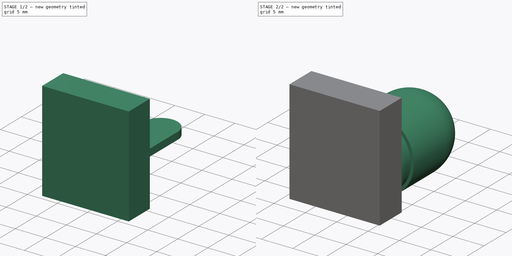
[diagram: build sequence overview — one tinted view per stage of 2, left to right]
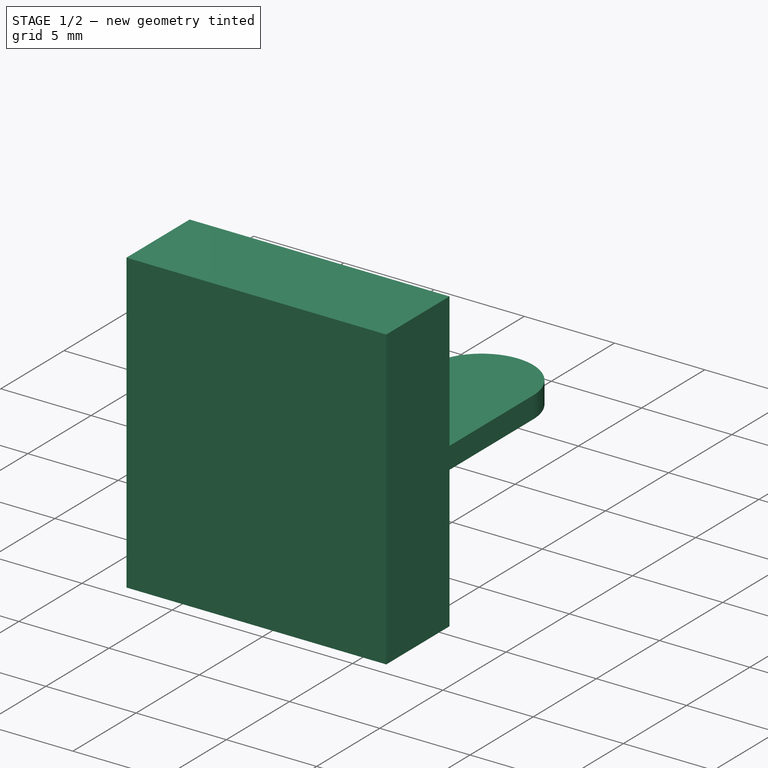
[diagram: stage 1 of 2 — iso view after this stage's code; geometry added in this stage tinted green]
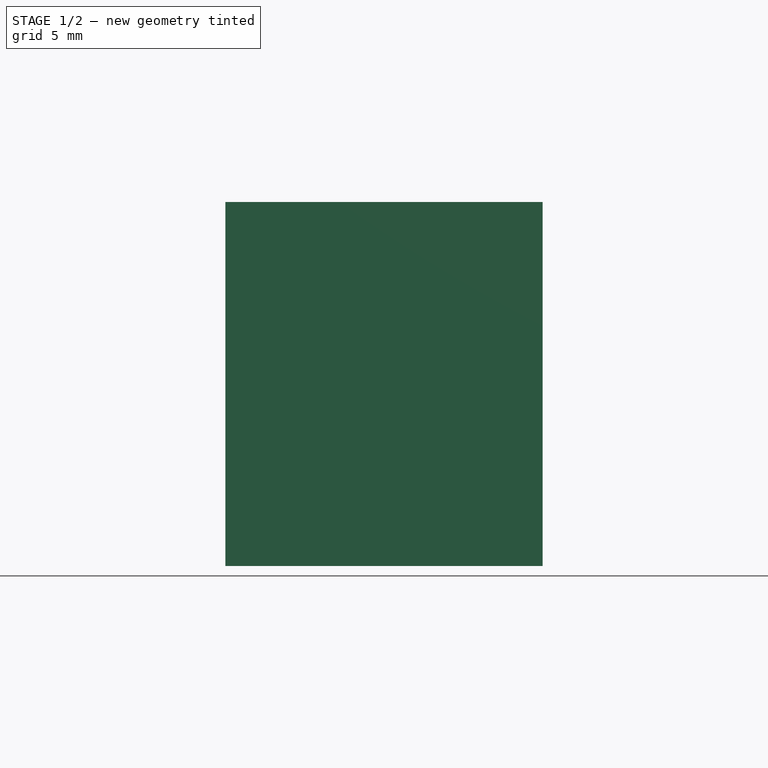
[diagram: stage 1 of 2 — front view after this stage's code; geometry added in this stage tinted green]
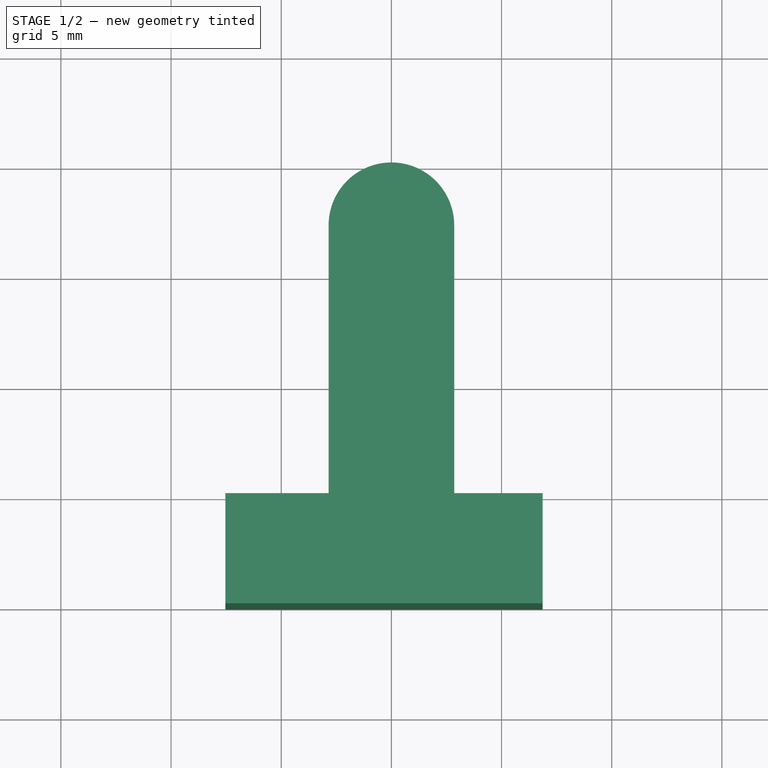
[diagram: stage 1 of 2 — top view after this stage's code; geometry added in this stage tinted green]
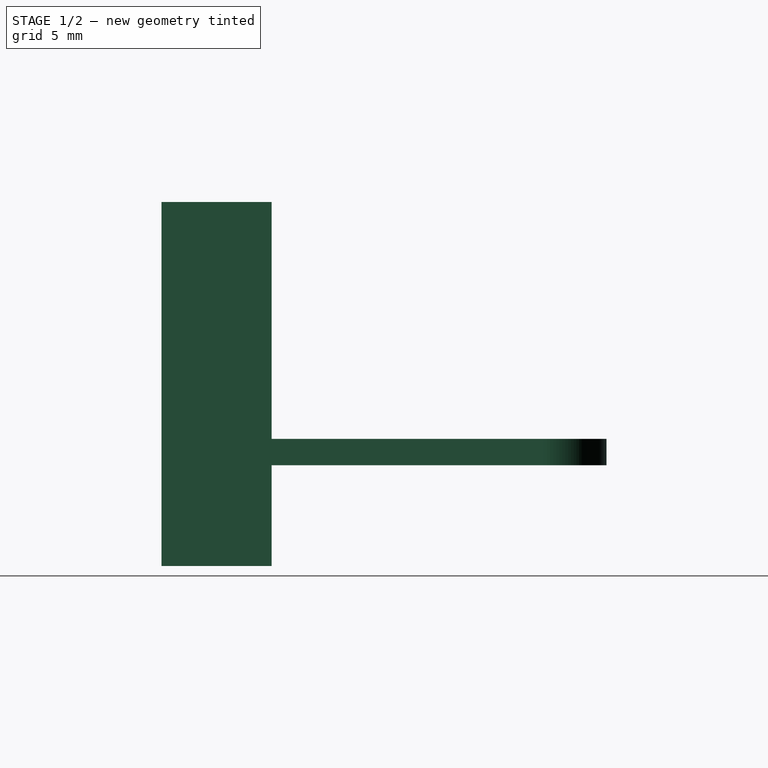
[diagram: stage 1 of 2 — right view after this stage's code; geometry added in this stage tinted green]
FCSTD DOCUMENT  (FreeCAD 0.19R24276 (Git))
Label: thermal_sleeve
License: All rights reserved
LicenseURL: http://en.wikipedia.org/wiki/All_rights_reserved
objects: App::Part×14, Part::Feature×13, Sketcher::SketchObject×5, PartDesign::Body×3, PartDesign::Pad×3, PartDesign::Revolution×1
note: 29 computed .brp shape members not serialized (recipe doc carries the construction recipe); baked Part::Feature solids carry a one-line shape summary decoded from their .brp

FEATURE [Sketcher::SketchObject] Sketch001
  FullyConstrained = true
  MapMode = 5
  Support = -> [XY_Plane001]
FEATURE [PartDesign::Body] Body  label="temperature_sleeve"
  Group = -> [Sketch,Revolution,Sketch001]
  Origin = -> Origin001
  Tip = -> Revolution
FEATURE [Sketcher::SketchObject] Sketch002
  FullyConstrained = true
  MapMode = 5
  Support = -> [XY_Plane028]
  sketch-geometry (4):
    g0: LineSegment StartX=-2.85 StartY=0 StartZ=0 EndX=-2.85 EndY=12.35 EndZ=0
    g1: LineSegment StartX=2.85 StartY=12.35 StartZ=0 EndX=2.85 EndY=0 EndZ=0
    g2: LineSegment StartX=2.85 StartY=0 StartZ=0 EndX=-2.85 EndY=0 EndZ=0
    g3: ArcOfCircle CenterX=0 CenterY=12.35 CenterZ=0 NormalX=0 NormalY=0 NormalZ=1 AngleXU=0 Radius=2.85 StartAngle=0 EndAngle=3.14159
  constraints (13):
    c: PointOnObject(g0,g-1)
    c: Vertical(g0)
    c: PointOnObject(g1,g-1)
    c: Vertical(g1)
    c: Coincident(g1,g2)
    c: Coincident(g2,g0)
    c: PointOnObject(g3,g-2)
    c: Coincident(g3,g0)
    c: Coincident(g3,g1)
    c: Horizontal(g1,g0)
    c: Horizontal(g3,g0)
    c: DistanceX(g0,g-1) = 2.85
    c: Distance(g0) = 12.35
FEATURE [PartDesign::Pad] Pad
  Direction = (1,1,1)
  Length = 0.6
  Length2 = 0.6
  Profile = -> Sketch002
  Type = 4
FEATURE [PartDesign::Body] Body001  label="PCB_cutout"
  Group = -> [Sketch002,Pad,Sketch003,Pad001]
  Origin = -> Origin028
  Tip = -> Pad001
FEATURE [Sketcher::SketchObject] Sketch004
  FullyConstrained = false
  MapMode = 5
  Placement = pos=(0,0,0) rot=(1,0,0;1.5708rad)
  Support = -> [XZ_Plane029]
  sketch-geometry (4):
    g0: LineSegment StartX=-7.53453 StartY=11.3477 StartZ=0 EndX=6.86273 EndY=11.3477 EndZ=0
    g1: LineSegment StartX=6.86273 StartY=11.3477 StartZ=0 EndX=6.86273 EndY=-5.1722 EndZ=0
    g2: LineSegment StartX=6.86273 StartY=-5.1722 StartZ=0 EndX=-7.53453 EndY=-5.1722 EndZ=0
    g3: LineSegment StartX=-7.53453 StartY=-5.1722 StartZ=0 EndX=-7.53453 EndY=11.3477 EndZ=0
  constraints (8):
    c: Coincident(g0,g1)
    c: Coincident(g1,g2)
    c: Coincident(g2,g3)
    c: Coincident(g3,g0)
    c: Horizontal(g0)
    c: Horizontal(g2)
    c: Vertical(g1)
    c: Vertical(g3)
FEATURE [PartDesign::Pad] Pad002
  Direction = (1,1,1)
  Length = 5
  Length2 = 100
  Placement = pos=(0,0,0) rot=(1,0,0;1.5708rad)
  Profile = -> Sketch004
  Type = 0
FEATURE [PartDesign::Body] Body002  label="surface_edge"
  Group = -> [Sketch004,Pad002]
  Origin = -> Origin029
  Placement = pos=(0,17.0263,7.49038) rot=(1,0,0;1.0472rad)
  Tip = -> Pad002
FEATURE [App::Part] Part
  Group = -> [Body,Body001,Body002]
  Origin = -> Origin
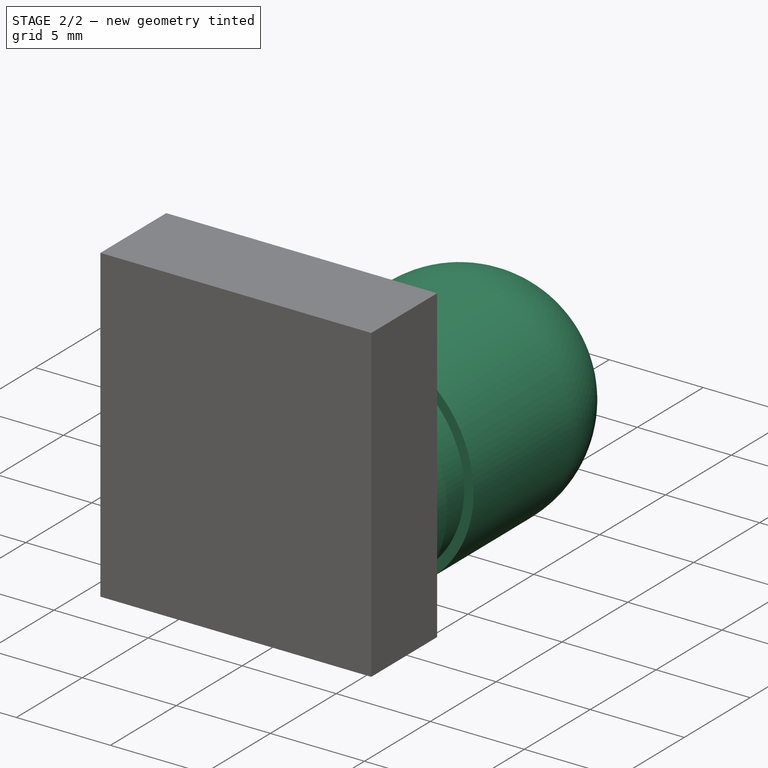
[diagram: stage 2 of 2 — iso view after this stage's code; geometry added in this stage tinted green]
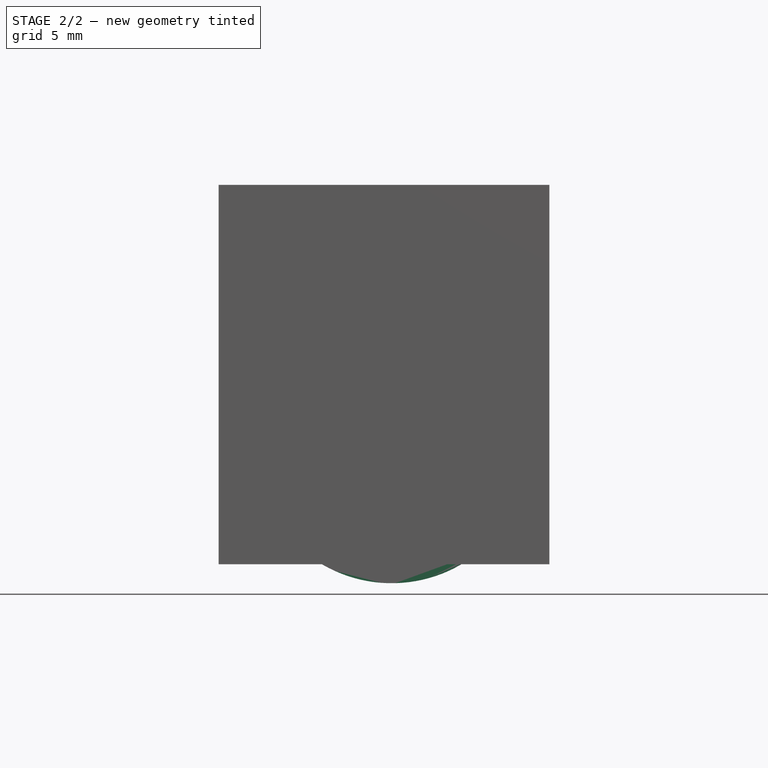
[diagram: stage 2 of 2 — front view after this stage's code; geometry added in this stage tinted green]
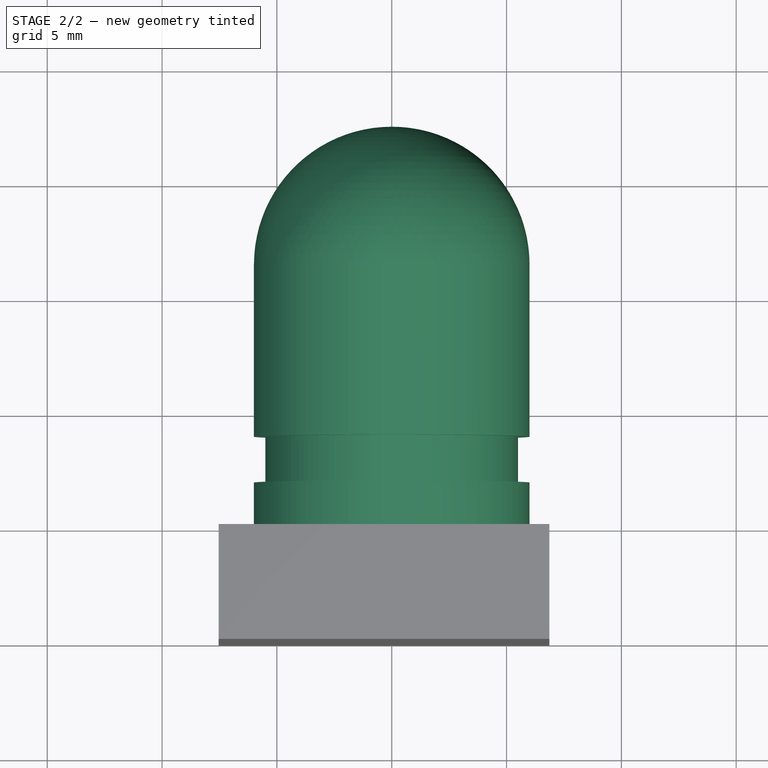
[diagram: stage 2 of 2 — top view after this stage's code; geometry added in this stage tinted green]
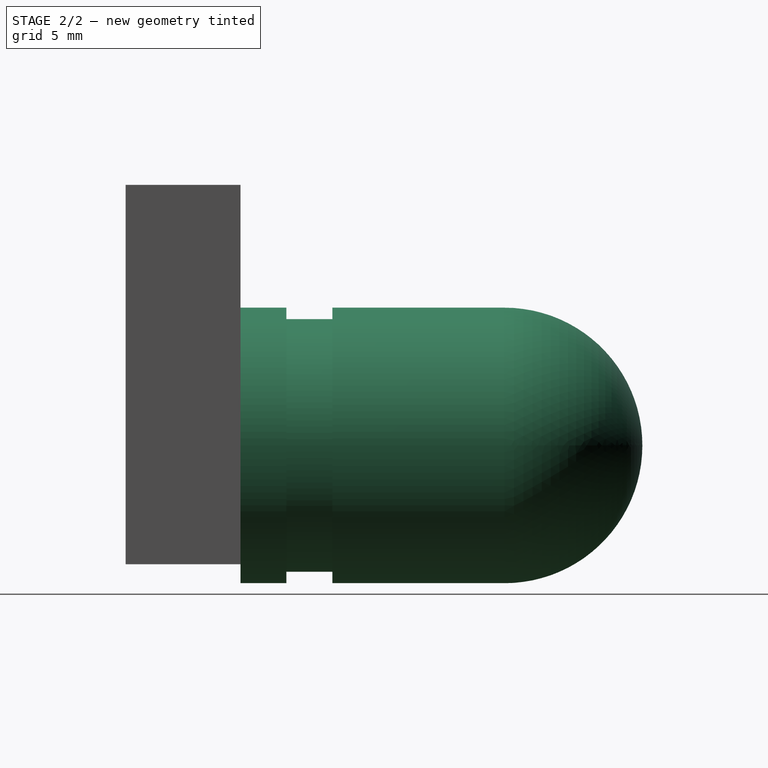
[diagram: stage 2 of 2 — right view after this stage's code; geometry added in this stage tinted green]
FEATURE [Sketcher::SketchObject] Sketch
  FullyConstrained = true
  MapMode = 5
  Support = -> [XY_Plane001]
  sketch-geometry (8):
    g0: ArcOfCircle CenterX=0 CenterY=11.5 CenterZ=0 NormalX=0 NormalY=0 NormalZ=1 AngleXU=0 Radius=6 StartAngle=5.09559e-06 EndAngle=1.5708
    g1: LineSegment StartX=4e-16 StartY=17.5 StartZ=0 EndX=0 EndY=0 EndZ=0
    g2: LineSegment StartX=6 StartY=0 StartZ=0 EndX=0 EndY=0 EndZ=0
    g3: LineSegment StartX=6 StartY=0 StartZ=0 EndX=6 EndY=2 EndZ=0
    g4: LineSegment StartX=6 StartY=2 StartZ=0 EndX=5.5 EndY=2 EndZ=0
    g5: LineSegment StartX=5.5 StartY=2 StartZ=0 EndX=5.5 EndY=4 EndZ=0
    g6: LineSegment StartX=5.5 StartY=4 StartZ=0 EndX=6 EndY=4 EndZ=0
    g7: LineSegment StartX=6 StartY=4 StartZ=0 EndX=6 EndY=11.5 EndZ=0
  constraints (24):
    c: PointOnObject(g0,g-2)
    c: Coincident(g1,g0)
    c: Coincident(g1,g-1)
    c: Coincident(g2,g1)
    c: Horizontal(g2)
    c: Vertical(g0,g1)
    c: Radius(g0) = 6
    c: Coincident(g2,g3)
    c: Vertical(g3)
    c: Coincident(g3,g4)
    c: Horizontal(g4)
    c: Coincident(g4,g5)
    c: Vertical(g5)
    c: Coincident(g5,g6)
    c: Coincident(g6,g7)
    c: Coincident(g7,g0)
    c: Vertical(g7)
    c: Horizontal(g6)
    c: Distance(g5) = 2
    c: Distance(g3) = 2
    c: Distance(g6) = 0.5
    c: Equal(g4,g6)
    c: Distance(g7) = 7.5
    c: Distance(g2) = 6
FEATURE [Part::Feature] Part__Feature013  label="C_0603_1608Metric006"
  shape: bbox 1.6 x 0.8 x 0.8 mm, 28 faces (baked)
FEATURE [App::Part] C_0603_1608Metric003  label="C_0603_1608Metric007"
  Group = -> [Part__Feature013]
  Origin = -> Origin015
  Placement = pos=(-3.1,-29.45,0.836) rot=(0,0,1;3.14159rad)
FEATURE [Part::Feature] Part__Feature014  label="C_0603_1608Metric008"
  shape: bbox 1.6 x 0.8 x 0.8 mm, 28 faces (baked)
FEATURE [App::Part] C_0603_1608Metric004  label="C_0603_1608Metric009"
  Group = -> [Part__Feature014]
  Origin = -> Origin016
  Placement = pos=(-3.5,-31.45,0.836) rot=(0,0,1;3.14159rad)
FEATURE [Part::Feature] Part__Feature015  label="WSON_6_1EP_2x2mm_P065mm_EP1x16mm001"
  shape: bbox 2 x 1.98 x 0.82 mm, 50 faces (baked)
FEATURE [App::Part] WSON_6_1EP_2x2mm_P0_65mm_EP1x1_6mm001  label="WSON-6-1EP_2x2mm_P0.65mm_EP1x1.6mm001"
  Group = -> [Part__Feature015]
  Origin = -> Origin017
  Placement = pos=(-2e-06,36.05,0.836) rot=(0,0,-1;1.5708rad)
FEATURE [Part::Feature] Part__Feature016  label="LED_0603_1608Metric002"
  shape: bbox 1.6 x 0.8 x 1.1 mm, 50 faces (baked)
FEATURE [App::Part] LED_0603_1608Metric001  label="LED_0603_1608Metric003"
  Group = -> [Part__Feature016]
  Origin = -> Origin018
  Placement = pos=(3.4,-33.25,0.836) rot=(0,0,1;0rad)
FEATURE [Part::Feature] Part__Feature017  label="R_0603_1608Metric008"
  shape: bbox 1.6 x 0.8 x 0.45 mm, 26 faces (baked)
FEATURE [App::Part] R_0603_1608Metric004  label="R_0603_1608Metric009"
  Group = -> [Part__Feature017]
  Origin = -> Origin019
  Placement = pos=(3.1,-27.85,0.836) rot=(0,0,1;3.14159rad)
FEATURE [Part::Feature] Part__Feature018  label="C_0402_1005Metric006"
  shape: bbox 1 x 0.5 x 0.5 mm, 28 faces (baked)
FEATURE [App::Part] C_0402_1005Metric003  label="C_0402_1005Metric007"
  Group = -> [Part__Feature018]
  Origin = -> Origin020
  Placement = pos=(-2e-06,34.15,0.836) rot=(0,0,1;3.14159rad)
FEATURE [Part::Feature] Part__Feature019  label="R_0603_1608Metric010"
  shape: bbox 1.6 x 0.8 x 0.45 mm, 26 faces (baked)
FEATURE [App::Part] R_0603_1608Metric005  label="R_0603_1608Metric011"
  Group = -> [Part__Feature019]
  Origin = -> Origin021
  Placement = pos=(-3.1,-27.75,0.836) rot=(0,0,1;0rad)
FEATURE [Part::Feature] Part__Feature020  label="C_0402_1005Metric008"
  shape: bbox 1 x 0.5 x 0.5 mm, 28 faces (baked)
FEATURE [App::Part] C_0402_1005Metric004  label="C_0402_1005Metric009"
  Group = -> [Part__Feature020]
  Origin = -> Origin022
  Placement = pos=(-0.020002,-33.35,0.836) rot=(0,0,1;3.14159rad)
FEATURE [Part::Feature] Part__Feature021  label="R_0603_1608Metric012"
  shape: bbox 1.6 x 0.8 x 0.45 mm, 26 faces (baked)
FEATURE [App::Part] R_0603_1608Metric006  label="R_0603_1608Metric013"
  Group = -> [Part__Feature021]
  Origin = -> Origin023
  Placement = pos=(3.4,-31.45,0.836) rot=(0,0,1;0rad)
FEATURE [Part::Feature] Part__Feature022  label="R_0603_1608Metric014"
  shape: bbox 1.6 x 0.8 x 0.45 mm, 26 faces (baked)
FEATURE [App::Part] R_0603_1608Metric007  label="R_0603_1608Metric015"
  Group = -> [Part__Feature022]
  Origin = -> Origin024
  Placement = pos=(3.1,-29.5,0.836) rot=(0,0,1;3.14159rad)
FEATURE [Part::Feature] Part__Feature023  label="C_0603_1608Metric010"
  shape: bbox 1.6 x 0.8 x 0.8 mm, 28 faces (baked)
FEATURE [App::Part] C_0603_1608Metric005  label="C_0603_1608Metric011"
  Group = -> [Part__Feature023]
  Origin = -> Origin025
  Placement = pos=(-3.5,-33.15,0.836) rot=(0,0,1;3.14159rad)
FEATURE [Part::Feature] Part__Feature024  label="C_0402_1005Metric010"
  shape: bbox 1 x 0.5 x 0.5 mm, 28 faces (baked)
FEATURE [App::Part] C_0402_1005Metric005  label="C_0402_1005Metric011"
  Group = -> [Part__Feature024]
  Origin = -> Origin026
  Placement = pos=(-0.020002,-34.45,0.836) rot=(0,0,1;3.14159rad)
FEATURE [Part::Feature] Part__Feature025  label="nfc_sense_ntag_surface_PCB"
  shape: bbox 18.6 x 76 x 0.786 mm, 16 faces (baked)
FEATURE [App::Part] nfc_sense_ntag_1001  label="nfc_sense_ntag 002"
  Group = -> [C_0603_1608Metric003,C_0603_1608Metric004,WSON_6_1EP_2x2mm_P0_65mm_EP1x1_6mm001,LED_0603_1608Metric001,R_0603_1608Metric004,C_0402_1005Metric003,R_0603_1608Metric005,C_0402_1005Metric004,R_0603_1608Metric006,R_0603_1608Metric007,C_0603_1608Metric005,C_0402_1005Metric005,Part__Feature025]
  Origin = -> Origin027
  Placement = pos=(0,-23,0) rot=(0,0,1;0rad)
FEATURE [PartDesign::Revolution] Revolution
  Angle = 360
  Axis = (0,1,0)
  Base = (0,0,0)
  Profile = -> Sketch
  ReferenceAxis = -> Sketch [V_Axis]
  Reversed = true
FEATURE [Sketcher::SketchObject] Sketch003
  FullyConstrained = true
  MapMode = 5
  Placement = pos=(0,0,0.6) rot=(0,0,1;0rad)
  Support = -> [Pad]
  sketch-geometry (8):
    g0: LineSegment StartX=-1.15 StartY=14.2 StartZ=0 EndX=1.15 EndY=14.2 EndZ=0
    g1: LineSegment StartX=1.15 StartY=14.2 StartZ=0 EndX=1.15 EndY=11.9 EndZ=0
    g2: LineSegment StartX=1.15 StartY=11.9 StartZ=0 EndX=-1.15 EndY=11.9 EndZ=0
    g3: LineSegment StartX=-1.15 StartY=11.9 StartZ=0 EndX=-1.15 EndY=14.2 EndZ=0
    g4: LineSegment StartX=-0.9 StartY=11.48 StartZ=0 EndX=0.9 EndY=11.48 EndZ=0
    g5: LineSegment StartX=0.9 StartY=11.48 StartZ=0 EndX=0.9 EndY=10.68 EndZ=0
    g6: LineSegment StartX=0.9 StartY=10.68 StartZ=0 EndX=-0.9 EndY=10.68 EndZ=0
    g7: LineSegment StartX=-0.9 StartY=10.68 StartZ=0 EndX=-0.9 EndY=11.48 EndZ=0
  constraints (24):
    c: Coincident(g0,g1)
    c: Coincident(g1,g2)
    c: Coincident(g2,g3)
    c: Coincident(g3,g0)
    c: Horizontal(g0)
    c: Horizontal(g2)
    c: Vertical(g1)
    c: Vertical(g3)
    c: Coincident(g4,g5)
    c: Coincident(g5,g6)
    c: Coincident(g6,g7)
    c: Coincident(g7,g4)
    c: Horizontal(g4)
    c: Horizontal(g6)
    c: Vertical(g5)
    c: Vertical(g7)
    c: Distance(g0) = 2.3
    c: Distance(g1) = 2.3
    c: DistanceX(g-1,g1) = 1.15
    c: DistanceY(g-1,g1) = 11.9
    c: Distance(g6) = 1.8
    c: Distance(g5) = 0.8
    c: DistanceX(g-1,g5) = 0.9
    c: DistanceY(g-1,g5) = 10.68
FEATURE [PartDesign::Pad] Pad001
  BaseFeature = -> Pad
  Direction = (1,1,1)
  Length = 1.3
  Length2 = 100
  Profile = -> Sketch003
  Type = 0
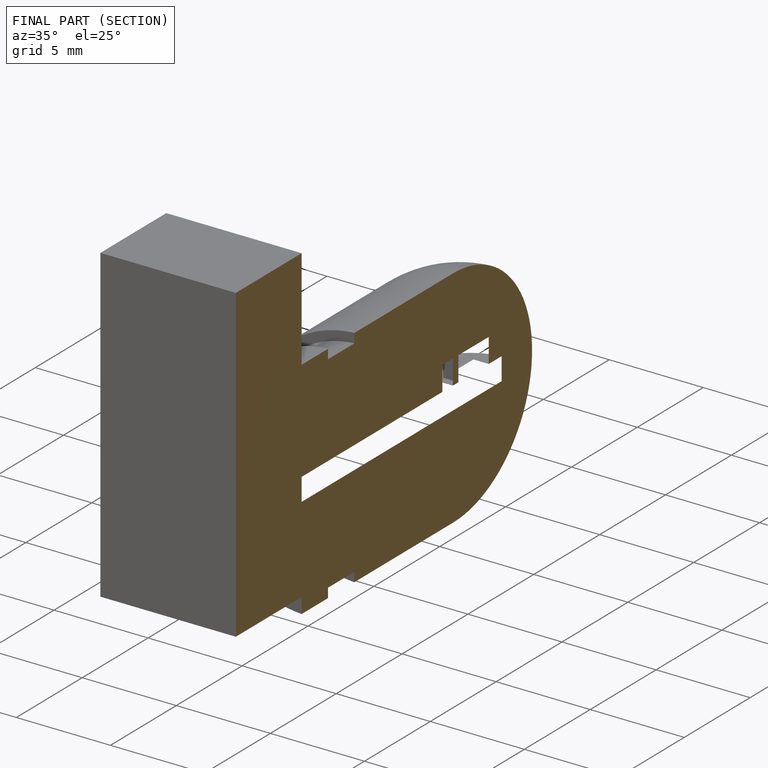
[diagram: finished part — half-section view (interior)]
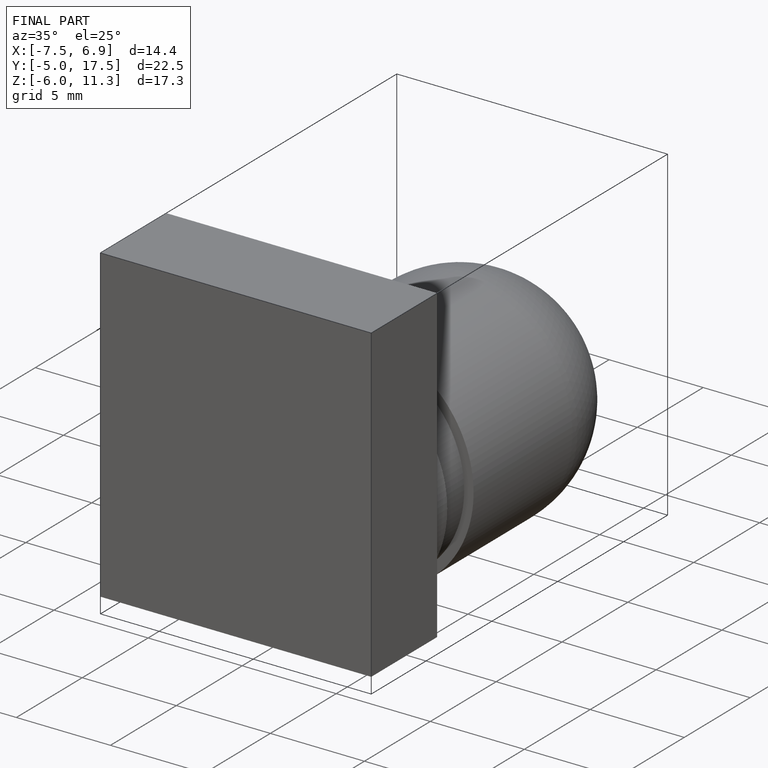
[diagram: finished part — iso view with bounding-box wireframe]
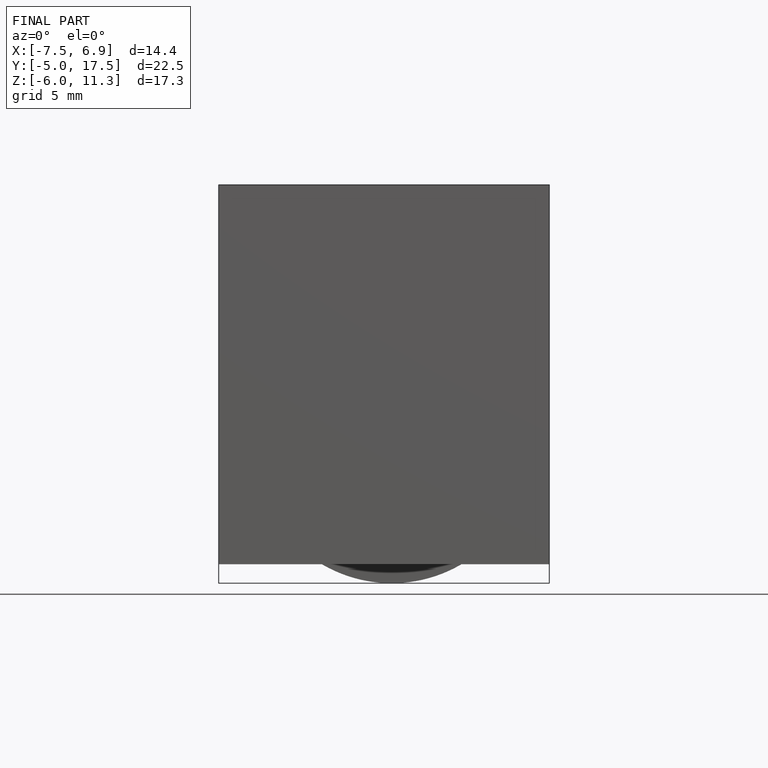
[diagram: finished part — front view with bounding-box wireframe]
